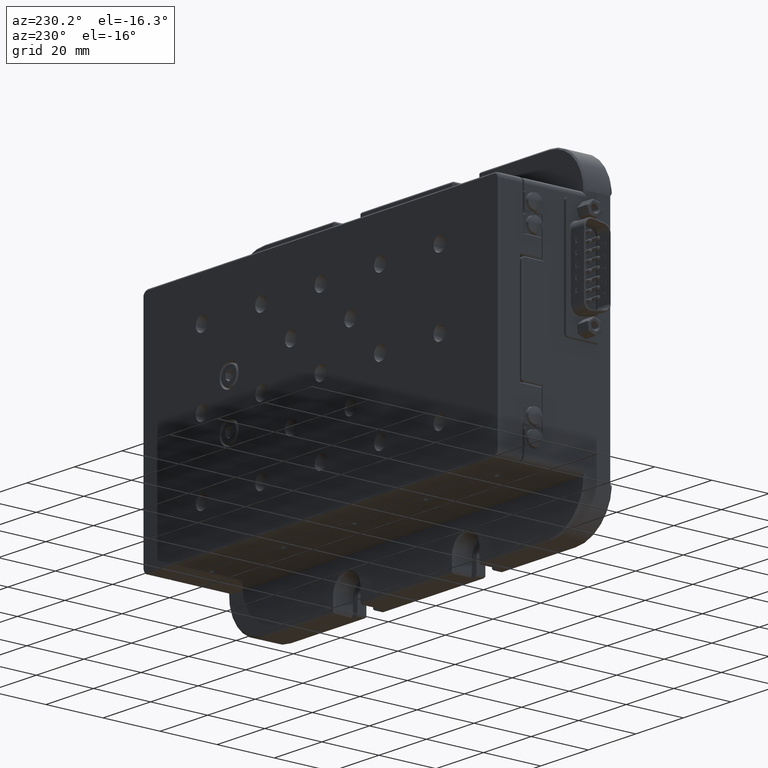
[diagram: clean part render]
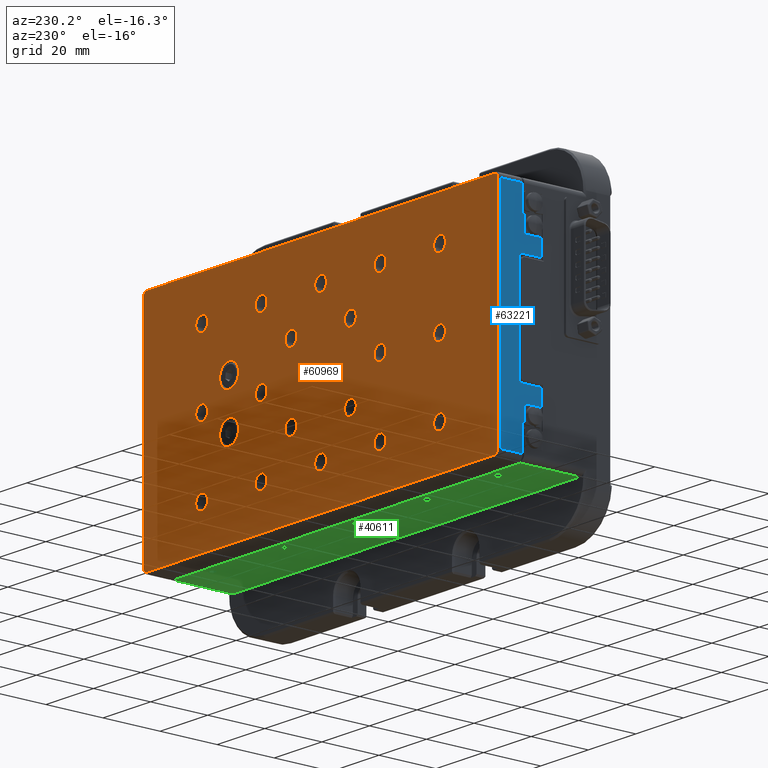
[diagram: same view with three faces highlighted in distinct colors, each labeled with its STEP entity id]
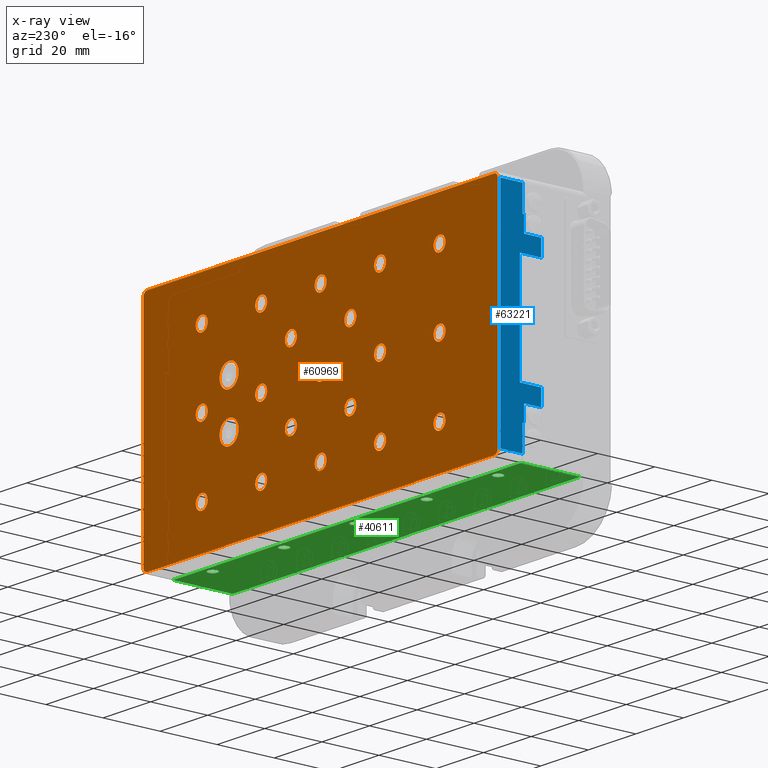
[diagram: x-ray of the same camera — body ghosted, the three highlighted faces saturated]
A machine part, auxiliary view with three faces highlighted in distinct colors.
The next image is the same camera in x-ray (body ghosted, the three faces saturated) — at least one of them is partly hidden behind the body in this view.
Their STEP definitions:

[orange] entity #60969 — the highlighted planar face has unit normal (0, 1, 0).
#39 = CIRCLE ( 'NONE', #39982, 2.500000000000002200 ) ;
#104 = ORIENTED_EDGE ( 'NONE', *, *, #36175, .T. ) ;
#674 = DIRECTION ( 'NONE',  ( 0.0000000000000000000, -1.224646799147358900E-016, 1.000000000000000000 ) ) ;
#843 = EDGE_CURVE ( 'NONE', #47787, #39453, #42745, .T. ) ;
#891 = CARTESIAN_POINT ( 'NONE',  ( 265.4980153580485200, 40.00000000000003600, 49.61789066043693500 ) ) ;
#915 = CARTESIAN_POINT ( 'NONE',  ( 265.4980153580485200, 40.00000000000004300, 10.11789066043693800 ) ) ;
#991 = VERTEX_POINT ( 'NONE', #48229 ) ;
#1100 = DIRECTION ( 'NONE',  ( -1.224646799147352700E-016, -1.000000000000000000, -1.224646799147355400E-016 ) ) ;
#1115 = DIRECTION ( 'NONE',  ( 0.0000000000000000000, -1.224646799147358900E-016, 1.000000000000000000 ) ) ;
#1386 = EDGE_CURVE ( 'NONE', #57998, #19868, #44227, .T. ) ;
#1409 = DIRECTION ( 'NONE',  ( -1.224646799147352700E-016, -1.000000000000000000, -1.224646799147355400E-016 ) ) ;
#1594 = CIRCLE ( 'NONE', #21606, 2.500000000000002200 ) ;
#1620 = DIRECTION ( 'NONE',  ( 0.0000000000000000000, 0.0000000000000000000, 1.000000000000000000 ) ) ;
#1653 = VERTEX_POINT ( 'NONE', #51838 ) ;
#1736 = FACE_BOUND ( 'NONE', #13314, .T. ) ;
#1748 = VERTEX_POINT ( 'NONE', #51603 ) ;
#1798 = VERTEX_POINT ( 'NONE', #22691 ) ;
#1827 = CIRCLE ( 'NONE', #23085, 2.500000000000002200 ) ;
#1901 = ORIENTED_EDGE ( 'NONE', *, *, #21591, .T. ) ;
#1949 = CARTESIAN_POINT ( 'NONE',  ( 195.4980153580484900, 40.00000000000005000, 24.61789066043695600 ) ) ;
#2098 = CARTESIAN_POINT ( 'NONE',  ( 232.9980153580485800, 40.00000000000003600, 59.61789066043693500 ) ) ;
#2149 = LINE ( 'NONE', #48984, #20867 ) ;
#2539 = EDGE_CURVE ( 'NONE', #64460, #30722, #50345, .T. ) ;
#2565 = FACE_BOUND ( 'NONE', #36147, .T. ) ;
#2945 = CARTESIAN_POINT ( 'NONE',  ( 258.9980153580485200, 40.00000000000003600, 57.61789066043693500 ) ) ;
#3011 = CIRCLE ( 'NONE', #52564, 2.500000000000002200 ) ;
#3088 = EDGE_CURVE ( 'NONE', #34633, #4170, #3903, .T. ) ;
#3157 = DIRECTION ( 'NONE',  ( -1.224646799147352700E-016, -1.000000000000000000, -1.224646799147355400E-016 ) ) ;
#3424 = DIRECTION ( 'NONE',  ( -1.224646799147352700E-016, -1.000000000000000000, -1.224646799147355400E-016 ) ) ;
#3488 = DIRECTION ( 'NONE',  ( 0.0000000000000000000, 0.0000000000000000000, 1.000000000000000000 ) ) ;
#3655 = VERTEX_POINT ( 'NONE', #54341 ) ;
#3903 = CIRCLE ( 'NONE', #13506, 2.499999999999998700 ) ;
#3925 = DIRECTION ( 'NONE',  ( -1.224646799147352700E-016, -1.000000000000000000, -1.224646799147355400E-016 ) ) ;
#4136 = FACE_BOUND ( 'NONE', #7845, .T. ) ;
#4170 = VERTEX_POINT ( 'NONE', #57377 ) ;
#4194 = VERTEX_POINT ( 'NONE', #24130 ) ;
#4272 = AXIS2_PLACEMENT_3D ( 'NONE', #7430, #7006, #57002 ) ;
#4325 = ORIENTED_EDGE ( 'NONE', *, *, #35173, .T. ) ;
#4436 = DIRECTION ( 'NONE',  ( 0.0000000000000000000, 0.0000000000000000000, 1.000000000000000000 ) ) ;
#4483 = DIRECTION ( 'NONE',  ( 0.0000000000000000000, 0.0000000000000000000, 1.000000000000000000 ) ) ;
#4522 = DIRECTION ( 'NONE',  ( 0.0000000000000000000, 0.0000000000000000000, 1.000000000000000000 ) ) ;
#4563 = DIRECTION ( 'NONE',  ( -1.224646799147352700E-016, -1.000000000000000000, -1.224646799147355400E-016 ) ) ;
#4825 = CARTESIAN_POINT ( 'NONE',  ( 220.4980153580485200, 40.00000000000004300, 22.11789066043694500 ) ) ;
#5159 = VERTEX_POINT ( 'NONE', #16707 ) ;
#5209 = CARTESIAN_POINT ( 'NONE',  ( 232.9980153580485500, 40.00000000000004300, 37.11789066043694200 ) ) ;
#5309 = CIRCLE ( 'NONE', #13731, 1.500000000016279900 ) ;
#5366 = CARTESIAN_POINT ( 'NONE',  ( 170.4980153580485500, 40.00000000000004300, 74.61789066043694200 ) ) ;
#5558 = ORIENTED_EDGE ( 'NONE', *, *, #46838, .T. ) ;
#5639 = DIRECTION ( 'NONE',  ( -1.224646799147352700E-016, -1.000000000000000000, -1.224646799147355400E-016 ) ) ;
#5689 = VECTOR ( 'NONE', #26427, 1000.000000000000000 ) ;
#5936 = DIRECTION ( 'NONE',  ( -1.224646799147352700E-016, -1.000000000000000000, -1.224646799147355400E-016 ) ) ;
#6059 = VERTEX_POINT ( 'NONE', #25283 ) ;
#6132 = ORIENTED_EDGE ( 'NONE', *, *, #6867, .T. ) ;
#6223 = DIRECTION ( 'NONE',  ( -1.224646799147352700E-016, -1.000000000000000000, -1.224646799147355400E-016 ) ) ;
#6252 = CARTESIAN_POINT ( 'NONE',  ( 232.9980153580485800, 40.00000000000003600, 64.61789066043694200 ) ) ;
#6283 = AXIS2_PLACEMENT_3D ( 'NONE', #34360, #48695, #4522 ) ;
#6376 = DIRECTION ( 'NONE',  ( 0.0000000000000000000, 0.0000000000000000000, 1.000000000000000000 ) ) ;
#6463 = EDGE_CURVE ( 'NONE', #48517, #35381, #36303, .T. ) ;
#6478 = AXIS2_PLACEMENT_3D ( 'NONE', #8980, #48542, #48127 ) ;
#6638 = CIRCLE ( 'NONE', #41195, 2.500000000000002200 ) ;
#6666 = EDGE_CURVE ( 'NONE', #14004, #53799, #49442, .T. ) ;
#6680 = CARTESIAN_POINT ( 'NONE',  ( 245.4980153580485200, 40.00000000000004300, 24.61789066043693800 ) ) ;
#6867 = EDGE_CURVE ( 'NONE', #36573, #991, #54142, .T. ) ;
#7006 = DIRECTION ( 'NONE',  ( -1.224646799147352700E-016, -1.000000000000000000, -1.224646799147355400E-016 ) ) ;
#7069 = VERTEX_POINT ( 'NONE', #33419 ) ;
#7143 = DIRECTION ( 'NONE',  ( 0.0000000000000000000, 0.0000000000000000000, 1.000000000000000000 ) ) ;
#7380 = CIRCLE ( 'NONE', #4272, 2.500000000000002200 ) ;
#7381 = CIRCLE ( 'NONE', #34564, 2.499999999999998700 ) ;
#7430 = CARTESIAN_POINT ( 'NONE',  ( 207.9980153580485200, 40.00000000000004300, 37.11789066043694900 ) ) ;
#7534 = DIRECTION ( 'NONE',  ( -1.224646799147352700E-016, -1.000000000000000000, -1.224646799147355400E-016 ) ) ;
#7701 = DIRECTION ( 'NONE',  ( -1.224646799147352700E-016, -1.000000000000000000, -1.224646799147355400E-016 ) ) ;
#7796 = EDGE_CURVE ( 'NONE', #11080, #30281, #46200, .T. ) ;
#7845 = EDGE_LOOP ( 'NONE', ( #8334, #11670 ) ) ;
#7871 = AXIS2_PLACEMENT_3D ( 'NONE', #5366, #29746, #35629 ) ;
#7978 = DIRECTION ( 'NONE',  ( -1.224646799147352700E-016, -1.000000000000000000, -1.224646799147355400E-016 ) ) ;
#8043 = ORIENTED_EDGE ( 'NONE', *, *, #3088, .T. ) ;
#8268 = EDGE_CURVE ( 'NONE', #58025, #20839, #34494, .T. ) ;
#8280 = DIRECTION ( 'NONE',  ( -1.224646799147352700E-016, -1.000000000000000000, -1.224646799147355400E-016 ) ) ;
#8333 = CARTESIAN_POINT ( 'NONE',  ( 293.4980153580484600, 39.99999999996362000, 11.61789066043693300 ) ) ;
#8334 = ORIENTED_EDGE ( 'NONE', *, *, #7796, .T. ) ;
#8493 = DIRECTION ( 'NONE',  ( 0.0000000000000000000, 0.0000000000000000000, 1.000000000000000000 ) ) ;
#8683 = DIRECTION ( 'NONE',  ( 0.0000000000000000000, 0.0000000000000000000, 1.000000000000000000 ) ) ;
#8748 = CARTESIAN_POINT ( 'NONE',  ( 232.9980153580485500, 40.00000000000004300, 37.11789066043694200 ) ) ;
#8980 = CARTESIAN_POINT ( 'NONE',  ( 170.4980153580485200, 40.00000000000005000, 49.61789066043697000 ) ) ;
#9200 = DIRECTION ( 'NONE',  ( -1.224646799147352700E-016, -1.000000000000000000, -1.224646799147355400E-016 ) ) ;
#9323 = AXIS2_PLACEMENT_3D ( 'NONE', #62585, #3424, #28041 ) ;
#9369 = ORIENTED_EDGE ( 'NONE', *, *, #13450, .T. ) ;
#9410 = DIRECTION ( 'NONE',  ( 0.0000000000000000000, 0.0000000000000000000, 1.000000000000000000 ) ) ;
#9609 = FACE_BOUND ( 'NONE', #44044, .T. ) ;
#9832 = CIRCLE ( 'NONE', #58961, 2.500000000000002200 ) ;
#10127 = ORIENTED_EDGE ( 'NONE', *, *, #21725, .T. ) ;
#10209 = EDGE_LOOP ( 'NONE', ( #104, #34845 ) ) ;
#10340 = ORIENTED_EDGE ( 'NONE', *, *, #1386, .T. ) ;
#10401 = DIRECTION ( 'NONE',  ( -1.224646799147352700E-016, -1.000000000000000000, -1.224646799147355400E-016 ) ) ;
#10431 = DIRECTION ( 'NONE',  ( 0.0000000000000000000, 0.0000000000000000000, 1.000000000000000000 ) ) ;
#10573 = VERTEX_POINT ( 'NONE', #45389 ) ;
#10617 = EDGE_LOOP ( 'NONE', ( #17614, #4325 ) ) ;
#10805 = CIRCLE ( 'NONE', #21830, 2.500000000000002200 ) ;
#10832 = DIRECTION ( 'NONE',  ( -0.0000000000000000000, 1.000000000000000000, -1.734723476003317200E-015 ) ) ;
#10837 = EDGE_LOOP ( 'NONE', ( #54291, #45411 ) ) ;
#11073 = ORIENTED_EDGE ( 'NONE', *, *, #54150, .T. ) ;
#11080 = VERTEX_POINT ( 'NONE', #60895 ) ;
#11161 = FACE_BOUND ( 'NONE', #39288, .T. ) ;
#11200 = ORIENTED_EDGE ( 'NONE', *, *, #37200, .T. ) ;
#11670 = ORIENTED_EDGE ( 'NONE', *, *, #54577, .T. ) ;
#11680 = DIRECTION ( 'NONE',  ( -1.224646799147352700E-016, -1.000000000000000000, -1.224646799147355400E-016 ) ) ;
#11764 = VERTEX_POINT ( 'NONE', #2098 ) ;
#11881 = CARTESIAN_POINT ( 'NONE',  ( 220.4980153580485200, 40.00000000000003600, 74.61789066043694200 ) ) ;
#11908 = FACE_BOUND ( 'NONE', #56264, .T. ) ;
#12110 = CIRCLE ( 'NONE', #52575, 2.500000000000002200 ) ;
#12159 = CARTESIAN_POINT ( 'NONE',  ( 220.4980153580485200, 40.00000000000004300, 47.11789066043694900 ) ) ;
#12480 = CARTESIAN_POINT ( 'NONE',  ( 220.4980153580485200, 40.00000000000004300, 52.11789066043695600 ) ) ;
#12726 = CIRCLE ( 'NONE', #50765, 2.500000000000002200 ) ;
#12859 = ORIENTED_EDGE ( 'NONE', *, *, #15614, .T. ) ;
#13170 = CARTESIAN_POINT ( 'NONE',  ( 270.4980153580485200, 40.00000000000003600, 22.11789066043693100 ) ) ;
#13314 = EDGE_LOOP ( 'NONE', ( #6132, #11200 ) ) ;
#13450 = EDGE_CURVE ( 'NONE', #4170, #34633, #17097, .T. ) ;
#13506 = AXIS2_PLACEMENT_3D ( 'NONE', #63933, #18997, #53785 ) ;
#13731 = AXIS2_PLACEMENT_3D ( 'NONE', #8333, #23761, #48745 ) ;
#13994 = CARTESIAN_POINT ( 'NONE',  ( 258.9980153580485200, 40.00000000000003600, 41.61789066043693500 ) ) ;
#14004 = VERTEX_POINT ( 'NONE', #28238 ) ;
#14186 = CARTESIAN_POINT ( 'NONE',  ( 220.4980153580485200, 40.00000000000004300, 49.61789066043695600 ) ) ;
#14395 = EDGE_CURVE ( 'NONE', #21418, #26440, #38055, .T. ) ;
#14793 = ORIENTED_EDGE ( 'NONE', *, *, #8268, .T. ) ;
#14796 = EDGE_CURVE ( 'NONE', #62017, #47787, #21663, .T. ) ;
#15055 = FACE_BOUND ( 'NONE', #28598, .T. ) ;
#15135 = AXIS2_PLACEMENT_3D ( 'NONE', #21484, #21265, #46892 ) ;
#15170 = ORIENTED_EDGE ( 'NONE', *, *, #54639, .T. ) ;
#15203 = CARTESIAN_POINT ( 'NONE',  ( 293.4980153580485200, 39.99999999996362000, 87.61789066043692700 ) ) ;
#15338 = DIRECTION ( 'NONE',  ( 0.0000000000000000000, 0.0000000000000000000, 1.000000000000000000 ) ) ;
#15614 = EDGE_CURVE ( 'NONE', #34048, #15714, #52679, .T. ) ;
#15714 = VERTEX_POINT ( 'NONE', #21421 ) ;
#15813 = DIRECTION ( 'NONE',  ( 0.0000000000000000000, 0.0000000000000000000, 1.000000000000000000 ) ) ;
#15849 = FACE_BOUND ( 'NONE', #10837, .T. ) ;
#16007 = EDGE_CURVE ( 'NONE', #26440, #21418, #25394, .T. ) ;
#16322 = EDGE_LOOP ( 'NONE', ( #45514, #52214 ) ) ;
#16454 = ORIENTED_EDGE ( 'NONE', *, *, #36033, .T. ) ;
#16489 = CIRCLE ( 'NONE', #25973, 2.499999999999988500 ) ;
#16586 = FACE_BOUND ( 'NONE', #16322, .T. ) ;
#16653 = VERTEX_POINT ( 'NONE', #39112 ) ;
#16684 = CARTESIAN_POINT ( 'NONE',  ( 293.4980153580484600, 39.99999999998182400, 10.11789066041872700 ) ) ;
#16707 = CARTESIAN_POINT ( 'NONE',  ( 232.9980153580485500, 40.00000000000004300, 34.61789066043694200 ) ) ;
#16768 = AXIS2_PLACEMENT_3D ( 'NONE', #29706, #59891, #30133 ) ;
#16894 = DIRECTION ( 'NONE',  ( 0.0000000000000000000, 0.0000000000000000000, 1.000000000000000000 ) ) ;
#17097 = CIRCLE ( 'NONE', #17561, 2.499999999999998700 ) ;
#17112 = CARTESIAN_POINT ( 'NONE',  ( 270.4980153580485200, 40.00000000000003600, 24.61789066043693100 ) ) ;
#17235 = DIRECTION ( 'NONE',  ( -1.224646799147352700E-016, -1.000000000000000000, -1.224646799147355400E-016 ) ) ;
#17342 = CARTESIAN_POINT ( 'NONE',  ( 170.4980153580484900, 40.00000000000005000, 27.11789066043697700 ) ) ;
#17561 = AXIS2_PLACEMENT_3D ( 'NONE', #19213, #34205, #39219 ) ;
#17614 = ORIENTED_EDGE ( 'NONE', *, *, #37547, .T. ) ;
#17797 = DIRECTION ( 'NONE',  ( 0.0000000000000000000, 0.0000000000000000000, 1.000000000000000000 ) ) ;
#17850 = VERTEX_POINT ( 'NONE', #28212 ) ;
#17949 = CIRCLE ( 'NONE', #60433, 2.499999999999998700 ) ;
#18258 = VERTEX_POINT ( 'NONE', #37573 ) ;
#18276 = CARTESIAN_POINT ( 'NONE',  ( 220.4980153580485200, 40.00000000000003600, 77.11789066043695600 ) ) ;
#18440 = ORIENTED_EDGE ( 'NONE', *, *, #60833, .T. ) ;
#18710 = DIRECTION ( 'NONE',  ( -1.224646799147352700E-016, -1.000000000000000000, -1.224646799147355400E-016 ) ) ;
#18713 = VERTEX_POINT ( 'NONE', #47645 ) ;
#18767 = AXIS2_PLACEMENT_3D ( 'NONE', #34259, #34470, #29469 ) ;
#18772 = CIRCLE ( 'NONE', #6478, 2.500000000000002200 ) ;
#18997 = DIRECTION ( 'NONE',  ( -1.224646799147352700E-016, -1.000000000000000000, -1.224646799147355400E-016 ) ) ;
#19213 = CARTESIAN_POINT ( 'NONE',  ( 220.4980153580485200, 40.00000000000004300, 24.61789066043694500 ) ) ;
#19313 = CARTESIAN_POINT ( 'NONE',  ( 258.9980153580485200, 40.00000000000003600, 53.61789066043692700 ) ) ;
#19324 = CIRCLE ( 'NONE', #29266, 2.500000000000002200 ) ;
#19476 = VERTEX_POINT ( 'NONE', #49734 ) ;
#19527 = VERTEX_POINT ( 'NONE', #42507 ) ;
#19868 = VERTEX_POINT ( 'NONE', #58353 ) ;
#19903 = DIRECTION ( 'NONE',  ( 0.0000000000000000000, -4.625929269046148000E-015, -1.000000000000000000 ) ) ;
#20020 = CARTESIAN_POINT ( 'NONE',  ( 270.4980153580485800, 40.00000000000002800, 74.61789066043689900 ) ) ;
#20087 = VECTOR ( 'NONE', #674, 1000.000000000000000 ) ;
#20221 = CIRCLE ( 'NONE', #29607, 4.000000000000003600 ) ;
#20736 = ORIENTED_EDGE ( 'NONE', *, *, #28373, .T. ) ;
#20744 = CARTESIAN_POINT ( 'NONE',  ( 220.4980153580485200, 40.00000000000003600, 74.61789066043694200 ) ) ;
#20839 = VERTEX_POINT ( 'NONE', #34116 ) ;
#20867 = VECTOR ( 'NONE', #64360, 1000.000000000000000 ) ;
#21014 = CIRCLE ( 'NONE', #48650, 2.500000000000002200 ) ;
#21106 = CARTESIAN_POINT ( 'NONE',  ( 147.4980153580485200, 39.99999999996361300, 87.61789066043698400 ) ) ;
#21265 = DIRECTION ( 'NONE',  ( -1.224646799147352700E-016, -1.000000000000000000, -1.224646799147355400E-016 ) ) ;
#21418 = VERTEX_POINT ( 'NONE', #39062 ) ;
#21421 = CARTESIAN_POINT ( 'NONE',  ( 147.4980153580485200, 39.99999999996362000, 10.11789066045469500 ) ) ;
#21484 = CARTESIAN_POINT ( 'NONE',  ( 270.4980153580485200, 40.00000000000003600, 24.61789066043693100 ) ) ;
#21591 = EDGE_CURVE ( 'NONE', #4194, #1748, #39485, .T. ) ;
#21592 = CIRCLE ( 'NONE', #45809, 2.500000000000002200 ) ;
#21606 = AXIS2_PLACEMENT_3D ( 'NONE', #20020, #54788, #25022 ) ;
#21663 = LINE ( 'NONE', #30531, #20087 ) ;
#21725 = EDGE_CURVE ( 'NONE', #24886, #24019, #19324, .T. ) ;
#21830 = AXIS2_PLACEMENT_3D ( 'NONE', #28907, #8280, #8493 ) ;
#22229 = CARTESIAN_POINT ( 'NONE',  ( 195.4980153580484900, 40.00000000000005000, 22.11789066043695900 ) ) ;
#22244 = DIRECTION ( 'NONE',  ( 0.0000000000000000000, 0.0000000000000000000, 1.000000000000000000 ) ) ;
#22387 = CARTESIAN_POINT ( 'NONE',  ( 207.9980153580485200, 40.00000000000004300, 59.61789066043694900 ) ) ;
#22691 = CARTESIAN_POINT ( 'NONE',  ( 245.4980153580485500, 40.00000000000003600, 77.11789066043695600 ) ) ;
#22842 = FACE_BOUND ( 'NONE', #23727, .T. ) ;
#23007 = DIRECTION ( 'NONE',  ( 0.0000000000000000000, 0.0000000000000000000, 1.000000000000000000 ) ) ;
#23085 = AXIS2_PLACEMENT_3D ( 'NONE', #56274, #46294, #7143 ) ;
#23087 = EDGE_LOOP ( 'NONE', ( #50965, #44900 ) ) ;
#23727 = EDGE_LOOP ( 'NONE', ( #9369, #8043 ) ) ;
#23761 = DIRECTION ( 'NONE',  ( 0.0000000000000000000, 1.000000000000000000, 0.0000000000000000000 ) ) ;
#23887 = VERTEX_POINT ( 'NONE', #46287 ) ;
#24019 = VERTEX_POINT ( 'NONE', #43692 ) ;
#24130 = CARTESIAN_POINT ( 'NONE',  ( 270.4980153580485200, 40.00000000000003600, 47.11789066043692700 ) ) ;
#24170 = CARTESIAN_POINT ( 'NONE',  ( 258.9980153580485200, 40.00000000000003600, 45.61789066043693500 ) ) ;
#24398 = FACE_BOUND ( 'NONE', #54817, .T. ) ;
#24675 = AXIS2_PLACEMENT_3D ( 'NONE', #31918, #7978, #17797 ) ;
#24677 = DIRECTION ( 'NONE',  ( -1.224646799147352700E-016, -1.000000000000000000, -1.224646799147355400E-016 ) ) ;
#24688 = AXIS2_PLACEMENT_3D ( 'NONE', #52328, #7534, #32756 ) ;
#24700 = AXIS2_PLACEMENT_3D ( 'NONE', #45334, #24677, #34686 ) ;
#24702 = CIRCLE ( 'NONE', #34587, 1.500000000073067800 ) ;
#24709 = EDGE_CURVE ( 'NONE', #5159, #19476, #9832, .T. ) ;
#24886 = VERTEX_POINT ( 'NONE', #18276 ) ;
#25022 = DIRECTION ( 'NONE',  ( 0.0000000000000000000, 0.0000000000000000000, 1.000000000000000000 ) ) ;
#25088 = EDGE_LOOP ( 'NONE', ( #27661, #60653 ) ) ;
#25122 = DIRECTION ( 'NONE',  ( -1.224646799147352700E-016, -1.000000000000000000, -1.224646799147355400E-016 ) ) ;
#25283 = CARTESIAN_POINT ( 'NONE',  ( 245.4980153580485200, 40.00000000000003600, 47.11789066043694200 ) ) ;
#25288 = EDGE_CURVE ( 'NONE', #30722, #64460, #41822, .T. ) ;
#25394 = CIRCLE ( 'NONE', #33069, 2.500000000000002200 ) ;
#25436 = AXIS2_PLACEMENT_3D ( 'NONE', #6680, #41518, #35865 ) ;
#25674 = DIRECTION ( 'NONE',  ( -0.0000000000000000000, 1.000000000000000000, -3.469446952006730600E-015 ) ) ;
#25905 = EDGE_CURVE ( 'NONE', #11764, #39251, #6638, .T. ) ;
#25973 = AXIS2_PLACEMENT_3D ( 'NONE', #46567, #36375, #52011 ) ;
#26419 = AXIS2_PLACEMENT_3D ( 'NONE', #2945, #37189, #23007 ) ;
#26427 = DIRECTION ( 'NONE',  ( -0.0000000000000000000, 1.224646799147358900E-016, -1.000000000000000000 ) ) ;
#26440 = VERTEX_POINT ( 'NONE', #56730 ) ;
#26789 = ORIENTED_EDGE ( 'NONE', *, *, #14395, .T. ) ;
#27126 = CARTESIAN_POINT ( 'NONE',  ( 245.4980153580485200, 40.00000000000004300, 27.11789066043693800 ) ) ;
#27326 = CARTESIAN_POINT ( 'NONE',  ( 170.4980153580485500, 40.00000000000004300, 77.11789066043695600 ) ) ;
#27657 = ORIENTED_EDGE ( 'NONE', *, *, #28191, .T. ) ;
#27661 = ORIENTED_EDGE ( 'NONE', *, *, #45398, .T. ) ;
#27827 = DIRECTION ( 'NONE',  ( -1.224646799147352700E-016, -1.000000000000000000, -1.224646799147355400E-016 ) ) ;
#27974 = AXIS2_PLACEMENT_3D ( 'NONE', #36481, #6223, #15813 ) ;
#28041 = DIRECTION ( 'NONE',  ( 0.0000000000000000000, 0.0000000000000000000, 1.000000000000000000 ) ) ;
#28064 = AXIS2_PLACEMENT_3D ( 'NONE', #61003, #1409, #1620 ) ;
#28191 = EDGE_CURVE ( 'NONE', #19527, #60660, #37543, .T. ) ;
#28212 = CARTESIAN_POINT ( 'NONE',  ( 170.4980153580484900, 40.00000000000005000, 22.11789066043698100 ) ) ;
#28238 = CARTESIAN_POINT ( 'NONE',  ( 245.4980153580485200, 40.00000000000004300, 22.11789066043693800 ) ) ;
#28237 = FACE_BOUND ( 'NONE', #30898, .T. ) ;
#28373 = EDGE_CURVE ( 'NONE', #24019, #24886, #39, .T. ) ;
#28598 = EDGE_LOOP ( 'NONE', ( #39475, #18440 ) ) ;
#28637 = ORIENTED_EDGE ( 'NONE', *, *, #46729, .T. ) ;
#28735 = DIRECTION ( 'NONE',  ( -1.224646799147352700E-016, -1.000000000000000000, -1.224646799147355400E-016 ) ) ;
#28907 = CARTESIAN_POINT ( 'NONE',  ( 232.9980153580485800, 40.00000000000003600, 62.11789066043693500 ) ) ;
#29098 = ORIENTED_EDGE ( 'NONE', *, *, #41713, .T. ) ;
#29266 = AXIS2_PLACEMENT_3D ( 'NONE', #20744, #1100, #6376 ) ;
#29407 = CARTESIAN_POINT ( 'NONE',  ( 258.9980153580485200, 40.00000000000003600, 57.61789066043693500 ) ) ;
#29469 = DIRECTION ( 'NONE',  ( 0.0000000000000000000, 0.0000000000000000000, 1.000000000000000000 ) ) ;
#29607 = AXIS2_PLACEMENT_3D ( 'NONE', #13994, #3925, #3488 ) ;
#29706 = CARTESIAN_POINT ( 'NONE',  ( 207.9980153580485200, 40.00000000000004300, 62.11789066043694900 ) ) ;
#29746 = DIRECTION ( 'NONE',  ( -1.224646799147352700E-016, -1.000000000000000000, -1.224646799147355400E-016 ) ) ;
#30058 = VERTEX_POINT ( 'NONE', #22387 ) ;
#30065 = VECTOR ( 'NONE', #36006, 1000.000000000000000 ) ;
#30133 = DIRECTION ( 'NONE',  ( 0.0000000000000000000, 0.0000000000000000000, 1.000000000000000000 ) ) ;
#30181 = CIRCLE ( 'NONE', #58256, 1.499999999981266300 ) ;
#30281 = VERTEX_POINT ( 'NONE', #19313 ) ;
#30322 = DIRECTION ( 'NONE',  ( 1.504632769045892200E-030, 1.000000000000000000, -3.469446951945971700E-015 ) ) ;
#30419 = DIRECTION ( 'NONE',  ( 0.0000000000000000000, 0.0000000000000000000, 1.000000000000000000 ) ) ;
#30531 = CARTESIAN_POINT ( 'NONE',  ( 145.9980153580485200, 40.00000000000005000, 49.61789066043693500 ) ) ;
#30722 = VERTEX_POINT ( 'NONE', #13170 ) ;
#30730 = ORIENTED_EDGE ( 'NONE', *, *, #56778, .T. ) ;
#30898 = EDGE_LOOP ( 'NONE', ( #30730, #29098 ) ) ;
#31558 = VERTEX_POINT ( 'NONE', #36307 ) ;
#31668 = CARTESIAN_POINT ( 'NONE',  ( 145.9980153580662500, 39.99999999996362000, 11.61789066043698200 ) ) ;
#31842 = CARTESIAN_POINT ( 'NONE',  ( 245.4980153580485200, 40.00000000000003600, 49.61789066043694900 ) ) ;
#31918 = CARTESIAN_POINT ( 'NONE',  ( 258.9980153580485200, 40.00000000000003600, 41.61789066043693500 ) ) ;
#32018 = CIRCLE ( 'NONE', #54728, 2.500000000000002200 ) ;
#32756 = DIRECTION ( 'NONE',  ( 0.0000000000000000000, 0.0000000000000000000, 1.000000000000000000 ) ) ;
#32778 = CIRCLE ( 'NONE', #28064, 2.500000000000002200 ) ;
#32941 = FACE_BOUND ( 'NONE', #10617, .T. ) ;
#33069 = AXIS2_PLACEMENT_3D ( 'NONE', #45944, #45735, #55709 ) ;
#33419 = CARTESIAN_POINT ( 'NONE',  ( 195.4980153580484900, 40.00000000000004300, 77.11789066043695600 ) ) ;
#33543 = DIRECTION ( 'NONE',  ( -1.224646799147352700E-016, -1.000000000000000000, -1.224646799147355400E-016 ) ) ;
#33890 = ORIENTED_EDGE ( 'NONE', *, *, #43541, .T. ) ;
#34048 = VERTEX_POINT ( 'NONE', #16684 ) ;
#34093 = CIRCLE ( 'NONE', #50384, 4.000000000000003600 ) ;
#34116 = CARTESIAN_POINT ( 'NONE',  ( 294.9980153580592100, 39.99999999999204200, 11.61789066043696500 ) ) ;
#34192 = EDGE_CURVE ( 'NONE', #1653, #10573, #57799, .T. ) ;
#34205 = DIRECTION ( 'NONE',  ( -1.224646799147352700E-016, -1.000000000000000000, -1.224646799147355400E-016 ) ) ;
#34232 = ORIENTED_EDGE ( 'NONE', *, *, #54517, .T. ) ;
#34259 = CARTESIAN_POINT ( 'NONE',  ( 270.4980153580485200, 40.00000000000003600, 49.61789066043693500 ) ) ;
#34323 = CARTESIAN_POINT ( 'NONE',  ( 170.4980153580485200, 40.00000000000005000, 49.61789066043697000 ) ) ;
#34360 = CARTESIAN_POINT ( 'NONE',  ( 220.4980153580485200, 40.00000000000004300, 49.61789066043695600 ) ) ;
#34470 = DIRECTION ( 'NONE',  ( -1.224646799147352700E-016, -1.000000000000000000, -1.224646799147355400E-016 ) ) ;
#34494 = LINE ( 'NONE', #56184, #5689 ) ;
#34518 = FACE_BOUND ( 'NONE', #46224, .T. ) ;
#34564 = AXIS2_PLACEMENT_3D ( 'NONE', #38506, #27827, #8683 ) ;
#34587 = AXIS2_PLACEMENT_3D ( 'NONE', #44506, #30322, #19903 ) ;
#34616 = DIRECTION ( 'NONE',  ( 0.0000000000000000000, 0.0000000000000000000, 1.000000000000000000 ) ) ;
#34633 = VERTEX_POINT ( 'NONE', #4825 ) ;
#34686 = DIRECTION ( 'NONE',  ( 0.0000000000000000000, 0.0000000000000000000, 1.000000000000000000 ) ) ;
#34845 = ORIENTED_EDGE ( 'NONE', *, *, #46320, .T. ) ;
#34858 = CARTESIAN_POINT ( 'NONE',  ( 170.4980153580485200, 40.00000000000005000, 47.11789066043696300 ) ) ;
#35173 = EDGE_CURVE ( 'NONE', #31558, #23887, #1594, .T. ) ;
#35381 = VERTEX_POINT ( 'NONE', #12159 ) ;
#35629 = DIRECTION ( 'NONE',  ( 0.0000000000000000000, 0.0000000000000000000, 1.000000000000000000 ) ) ;
#35865 = DIRECTION ( 'NONE',  ( 0.0000000000000000000, 0.0000000000000000000, 1.000000000000000000 ) ) ;
#35897 = ORIENTED_EDGE ( 'NONE', *, *, #34192, .T. ) ;
#36006 = DIRECTION ( 'NONE',  ( -1.000000000000000000, 1.224646799147352700E-016, 1.499759782661863900E-032 ) ) ;
#36033 = EDGE_CURVE ( 'NONE', #1748, #4194, #49037, .T. ) ;
#36147 = EDGE_LOOP ( 'NONE', ( #10127, #20736 ) ) ;
#36175 = EDGE_CURVE ( 'NONE', #7069, #37101, #43648, .T. ) ;
#36303 = CIRCLE ( 'NONE', #6283, 2.500000000000002200 ) ;
#36307 = CARTESIAN_POINT ( 'NONE',  ( 270.4980153580485800, 40.00000000000002800, 72.11789066043689900 ) ) ;
#36375 = DIRECTION ( 'NONE',  ( -1.224646799147352700E-016, -1.000000000000000000, -1.224646799147355400E-016 ) ) ;
#36481 = CARTESIAN_POINT ( 'NONE',  ( 195.4980153580484900, 40.00000000000005000, 24.61789066043695600 ) ) ;
#36573 = VERTEX_POINT ( 'NONE', #24170 ) ;
#37101 = VERTEX_POINT ( 'NONE', #39948 ) ;
#37189 = DIRECTION ( 'NONE',  ( -1.224646799147352700E-016, -1.000000000000000000, -1.224646799147355400E-016 ) ) ;
#37200 = EDGE_CURVE ( 'NONE', #991, #36573, #20221, .T. ) ;
#37543 = CIRCLE ( 'NONE', #7871, 2.500000000000002200 ) ;
#37547 = EDGE_CURVE ( 'NONE', #23887, #31558, #3011, .T. ) ;
#37573 = CARTESIAN_POINT ( 'NONE',  ( 245.4980153580485500, 40.00000000000003600, 72.11789066043694200 ) ) ;
#37679 = FACE_BOUND ( 'NONE', #10209, .T. ) ;
#37894 = ORIENTED_EDGE ( 'NONE', *, *, #50823, .T. ) ;
#38055 = CIRCLE ( 'NONE', #24688, 2.500000000000002200 ) ;
#38311 = CIRCLE ( 'NONE', #9323, 2.500000000000002200 ) ;
#38506 = CARTESIAN_POINT ( 'NONE',  ( 170.4980153580484900, 40.00000000000005000, 24.61789066043698100 ) ) ;
#38872 = AXIS2_PLACEMENT_3D ( 'NONE', #34323, #64468, #4483 ) ;
#39011 = CARTESIAN_POINT ( 'NONE',  ( 207.9980153580485200, 40.00000000000004300, 37.11789066043694900 ) ) ;
#39044 = EDGE_LOOP ( 'NONE', ( #33890, #55535 ) ) ;
#39062 = CARTESIAN_POINT ( 'NONE',  ( 195.4980153580484900, 40.00000000000004300, 52.11789066043696300 ) ) ;
#39112 = CARTESIAN_POINT ( 'NONE',  ( 207.9980153580485200, 40.00000000000004300, 64.61789066043695600 ) ) ;
#39206 = FACE_BOUND ( 'NONE', #39044, .T. ) ;
#39219 = DIRECTION ( 'NONE',  ( 0.0000000000000000000, 0.0000000000000000000, 1.000000000000000000 ) ) ;
#39251 = VERTEX_POINT ( 'NONE', #6252 ) ;
#39288 = EDGE_LOOP ( 'NONE', ( #26789, #56799 ) ) ;
#39439 = AXIS2_PLACEMENT_3D ( 'NONE', #1949, #17235, #22244 ) ;
#39453 = VERTEX_POINT ( 'NONE', #44472 ) ;
#39475 = ORIENTED_EDGE ( 'NONE', *, *, #46378, .T. ) ;
#39485 = CIRCLE ( 'NONE', #24700, 2.500000000000002200 ) ;
#39948 = CARTESIAN_POINT ( 'NONE',  ( 195.4980153580484900, 40.00000000000004300, 72.11789066043697000 ) ) ;
#39982 = AXIS2_PLACEMENT_3D ( 'NONE', #11881, #46673, #16894 ) ;
#40765 = AXIS2_PLACEMENT_3D ( 'NONE', #39011, #9200, #9410 ) ;
#41195 = AXIS2_PLACEMENT_3D ( 'NONE', #52903, #33543, #48099 ) ;
#41247 = EDGE_CURVE ( 'NONE', #19868, #57998, #42901, .T. ) ;
#41355 = ORIENTED_EDGE ( 'NONE', *, *, #843, .T. ) ;
#41518 = DIRECTION ( 'NONE',  ( -1.224646799147352700E-016, -1.000000000000000000, -1.224646799147355400E-016 ) ) ;
#41601 = CARTESIAN_POINT ( 'NONE',  ( 145.9980153580946800, 39.99999999996361300, 87.61789066043698400 ) ) ;
#41713 = EDGE_CURVE ( 'NONE', #6059, #59606, #21014, .T. ) ;
#41822 = CIRCLE ( 'NONE', #56097, 2.499999999999998700 ) ;
#41827 = CARTESIAN_POINT ( 'NONE',  ( 294.9980153580667100, 39.99999999998181700, 87.61789066043692700 ) ) ;
#42507 = CARTESIAN_POINT ( 'NONE',  ( 170.4980153580485500, 40.00000000000004300, 72.11789066043694200 ) ) ;
#42539 = DIRECTION ( 'NONE',  ( 0.0000000000000000000, 0.0000000000000000000, 1.000000000000000000 ) ) ;
#42643 = EDGE_CURVE ( 'NONE', #3655, #58025, #30181, .T. ) ;
#42745 = CIRCLE ( 'NONE', #48351, 1.499999999981210800 ) ;
#42777 = ORIENTED_EDGE ( 'NONE', *, *, #56398, .T. ) ;
#42855 = ORIENTED_EDGE ( 'NONE', *, *, #63497, .T. ) ;
#42901 = CIRCLE ( 'NONE', #39439, 2.499999999999995100 ) ;
#42937 = VERTEX_POINT ( 'NONE', #17342 ) ;
#43048 = CARTESIAN_POINT ( 'NONE',  ( 170.4980153580484900, 40.00000000000005000, 24.61789066043698100 ) ) ;
#43109 = EDGE_CURVE ( 'NONE', #15714, #62017, #24702, .T. ) ;
#43541 = EDGE_CURVE ( 'NONE', #19476, #5159, #21592, .T. ) ;
#43648 = CIRCLE ( 'NONE', #53327, 2.499999999999988500 ) ;
#43692 = CARTESIAN_POINT ( 'NONE',  ( 220.4980153580485200, 40.00000000000003600, 72.11789066043694200 ) ) ;
#43732 = CARTESIAN_POINT ( 'NONE',  ( 245.4980153580485200, 40.00000000000003600, 52.11789066043694900 ) ) ;
#44044 = EDGE_LOOP ( 'NONE', ( #28637, #42855 ) ) ;
#44227 = CIRCLE ( 'NONE', #27974, 2.499999999999995100 ) ;
#44230 = DIRECTION ( 'NONE',  ( -1.224646799147352700E-016, -1.000000000000000000, -1.224646799147355400E-016 ) ) ;
#44472 = CARTESIAN_POINT ( 'NONE',  ( 147.4980153580485200, 39.99999999998182400, 89.11789066045520300 ) ) ;
#44506 = CARTESIAN_POINT ( 'NONE',  ( 147.4980153580485200, 39.99999999996362000, 11.61789066043698200 ) ) ;
#44693 = EDGE_LOOP ( 'NONE', ( #49694, #10340 ) ) ;
#44803 = CARTESIAN_POINT ( 'NONE',  ( 207.9980153580485200, 40.00000000000004300, 62.11789066043694900 ) ) ;
#44897 = EDGE_CURVE ( 'NONE', #35381, #48517, #12110, .T. ) ;
#44900 = ORIENTED_EDGE ( 'NONE', *, *, #25288, .T. ) ;
#45148 = DIRECTION ( 'NONE',  ( -1.224646799147352700E-016, -1.000000000000000000, -1.224646799147355400E-016 ) ) ;
#45228 = ORIENTED_EDGE ( 'NONE', *, *, #43109, .T. ) ;
#45334 = CARTESIAN_POINT ( 'NONE',  ( 270.4980153580485200, 40.00000000000003600, 49.61789066043693500 ) ) ;
#45389 = CARTESIAN_POINT ( 'NONE',  ( 207.9980153580485200, 40.00000000000004300, 34.61789066043694900 ) ) ;
#45398 = EDGE_CURVE ( 'NONE', #18713, #52604, #64153, .T. ) ;
#45411 = ORIENTED_EDGE ( 'NONE', *, *, #44897, .T. ) ;
#45514 = ORIENTED_EDGE ( 'NONE', *, *, #64422, .T. ) ;
#45648 = EDGE_LOOP ( 'NONE', ( #11073, #56940 ) ) ;
#45735 = DIRECTION ( 'NONE',  ( -1.224646799147352700E-016, -1.000000000000000000, -1.224646799147355400E-016 ) ) ;
#45809 = AXIS2_PLACEMENT_3D ( 'NONE', #8748, #28735, #64128 ) ;
#45944 = CARTESIAN_POINT ( 'NONE',  ( 195.4980153580484900, 40.00000000000004300, 49.61789066043696300 ) ) ;
#46200 = CIRCLE ( 'NONE', #26419, 4.000000000000003600 ) ;
#46224 = EDGE_LOOP ( 'NONE', ( #35897, #42777 ) ) ;
#46287 = CARTESIAN_POINT ( 'NONE',  ( 270.4980153580485800, 40.00000000000002800, 77.11789066043691300 ) ) ;
#46294 = DIRECTION ( 'NONE',  ( -1.224646799147352700E-016, -1.000000000000000000, -1.224646799147355400E-016 ) ) ;
#46320 = EDGE_CURVE ( 'NONE', #37101, #7069, #16489, .T. ) ;
#46378 = EDGE_CURVE ( 'NONE', #1798, #18258, #38311, .T. ) ;
#46567 = CARTESIAN_POINT ( 'NONE',  ( 195.4980153580484900, 40.00000000000004300, 74.61789066043695600 ) ) ;
#46673 = DIRECTION ( 'NONE',  ( -1.224646799147352700E-016, -1.000000000000000000, -1.224646799147355400E-016 ) ) ;
#46729 = EDGE_CURVE ( 'NONE', #16653, #30058, #32018, .T. ) ;
#46838 = EDGE_CURVE ( 'NONE', #60660, #19527, #32778, .T. ) ;
#46892 = DIRECTION ( 'NONE',  ( 0.0000000000000000000, 0.0000000000000000000, 1.000000000000000000 ) ) ;
#47645 = CARTESIAN_POINT ( 'NONE',  ( 170.4980153580485200, 40.00000000000005000, 52.11789066043697000 ) ) ;
#47787 = VERTEX_POINT ( 'NONE', #41601 ) ;
#48040 = DIRECTION ( 'NONE',  ( 0.0000000000000000000, 0.0000000000000000000, 1.000000000000000000 ) ) ;
#48099 = DIRECTION ( 'NONE',  ( 0.0000000000000000000, 0.0000000000000000000, 1.000000000000000000 ) ) ;
#48127 = DIRECTION ( 'NONE',  ( 0.0000000000000000000, 0.0000000000000000000, 1.000000000000000000 ) ) ;
#48229 = CARTESIAN_POINT ( 'NONE',  ( 258.9980153580485200, 40.00000000000003600, 37.61789066043692700 ) ) ;
#48351 = AXIS2_PLACEMENT_3D ( 'NONE', #21106, #25674, #55235 ) ;
#48517 = VERTEX_POINT ( 'NONE', #12480 ) ;
#48542 = DIRECTION ( 'NONE',  ( -1.224646799147352700E-016, -1.000000000000000000, -1.224646799147355400E-016 ) ) ;
#48650 = AXIS2_PLACEMENT_3D ( 'NONE', #31842, #7701, #42539 ) ;
#48695 = DIRECTION ( 'NONE',  ( -1.224646799147352700E-016, -1.000000000000000000, -1.224646799147355400E-016 ) ) ;
#48745 = DIRECTION ( 'NONE',  ( 0.0000000000000000000, 0.0000000000000000000, -1.000000000000000000 ) ) ;
#48984 = CARTESIAN_POINT ( 'NONE',  ( 265.4980153580485200, 40.00000000000002800, 89.11789066043698400 ) ) ;
#49037 = CIRCLE ( 'NONE', #18767, 2.500000000000002200 ) ;
#49255 = CARTESIAN_POINT ( 'NONE',  ( 245.4980153580485500, 40.00000000000003600, 74.61789066043694200 ) ) ;
#49442 = CIRCLE ( 'NONE', #25436, 2.499999999999998700 ) ;
#49688 = DIRECTION ( 'NONE',  ( 0.0000000000000000000, 0.0000000000000000000, 1.000000000000000000 ) ) ;
#49694 = ORIENTED_EDGE ( 'NONE', *, *, #41247, .T. ) ;
#49734 = CARTESIAN_POINT ( 'NONE',  ( 232.9980153580485500, 40.00000000000004300, 39.61789066043694200 ) ) ;
#50345 = CIRCLE ( 'NONE', #15135, 2.499999999999998700 ) ;
#50384 = AXIS2_PLACEMENT_3D ( 'NONE', #29407, #44230, #58736 ) ;
#50765 = AXIS2_PLACEMENT_3D ( 'NONE', #49255, #25122, #4436 ) ;
#50823 = EDGE_CURVE ( 'NONE', #17850, #42937, #7381, .T. ) ;
#50839 = FACE_BOUND ( 'NONE', #23087, .T. ) ;
#50965 = ORIENTED_EDGE ( 'NONE', *, *, #2539, .T. ) ;
#50999 = ORIENTED_EDGE ( 'NONE', *, *, #63178, .T. ) ;
#51186 = PLANE ( 'NONE',  #59509 ) ;
#51254 = DIRECTION ( 'NONE',  ( 0.0000000000000000000, 0.0000000000000000000, 1.000000000000000000 ) ) ;
#51603 = CARTESIAN_POINT ( 'NONE',  ( 270.4980153580485200, 40.00000000000003600, 52.11789066043693500 ) ) ;
#51838 = CARTESIAN_POINT ( 'NONE',  ( 207.9980153580485200, 40.00000000000004300, 39.61789066043694900 ) ) ;
#52011 = DIRECTION ( 'NONE',  ( 0.0000000000000000000, 0.0000000000000000000, 1.000000000000000000 ) ) ;
#52214 = ORIENTED_EDGE ( 'NONE', *, *, #25905, .T. ) ;
#52328 = CARTESIAN_POINT ( 'NONE',  ( 195.4980153580484900, 40.00000000000004300, 49.61789066043696300 ) ) ;
#52564 = AXIS2_PLACEMENT_3D ( 'NONE', #58229, #18710, #48040 ) ;
#52575 = AXIS2_PLACEMENT_3D ( 'NONE', #14186, #4563, #34616 ) ;
#52586 = EDGE_LOOP ( 'NONE', ( #12859, #45228, #53423, #41355, #15170, #54196, #14793, #34232 ) ) ;
#52604 = VERTEX_POINT ( 'NONE', #34858 ) ;
#52679 = LINE ( 'NONE', #915, #30065 ) ;
#52903 = CARTESIAN_POINT ( 'NONE',  ( 232.9980153580485800, 40.00000000000003600, 62.11789066043693500 ) ) ;
#53171 = FACE_OUTER_BOUND ( 'NONE', #52586, .T. ) ;
#53290 = CARTESIAN_POINT ( 'NONE',  ( 270.4980153580485200, 40.00000000000003600, 27.11789066043693100 ) ) ;
#53327 = AXIS2_PLACEMENT_3D ( 'NONE', #55727, #5936, #15338 ) ;
#53423 = ORIENTED_EDGE ( 'NONE', *, *, #14796, .T. ) ;
#53785 = DIRECTION ( 'NONE',  ( 0.0000000000000000000, 0.0000000000000000000, 1.000000000000000000 ) ) ;
#53799 = VERTEX_POINT ( 'NONE', #27126 ) ;
#54142 = CIRCLE ( 'NONE', #24675, 4.000000000000003600 ) ;
#54150 = EDGE_CURVE ( 'NONE', #53799, #14004, #59033, .T. ) ;
#54196 = ORIENTED_EDGE ( 'NONE', *, *, #42643, .T. ) ;
#54291 = ORIENTED_EDGE ( 'NONE', *, *, #6463, .T. ) ;
#54341 = CARTESIAN_POINT ( 'NONE',  ( 293.4980153580485200, 39.99999999996362000, 89.11789066041922100 ) ) ;
#54517 = EDGE_CURVE ( 'NONE', #20839, #34048, #5309, .T. ) ;
#54577 = EDGE_CURVE ( 'NONE', #30281, #11080, #34093, .T. ) ;
#54639 = EDGE_CURVE ( 'NONE', #39453, #3655, #2149, .T. ) ;
#54702 = FACE_BOUND ( 'NONE', #25088, .T. ) ;
#54728 = AXIS2_PLACEMENT_3D ( 'NONE', #44803, #10401, #30419 ) ;
#54788 = DIRECTION ( 'NONE',  ( -1.224646799147352700E-016, -1.000000000000000000, -1.224646799147355400E-016 ) ) ;
#54817 = EDGE_LOOP ( 'NONE', ( #5558, #27657 ) ) ;
#54935 = AXIS2_PLACEMENT_3D ( 'NONE', #60283, #45148, #49688 ) ;
#55235 = DIRECTION ( 'NONE',  ( 0.0000000000000000000, -4.625929269329430300E-015, -1.000000000000000000 ) ) ;
#55535 = ORIENTED_EDGE ( 'NONE', *, *, #24709, .T. ) ;
#55709 = DIRECTION ( 'NONE',  ( 0.0000000000000000000, 0.0000000000000000000, 1.000000000000000000 ) ) ;
#55727 = CARTESIAN_POINT ( 'NONE',  ( 195.4980153580484900, 40.00000000000004300, 74.61789066043695600 ) ) ;
#56097 = AXIS2_PLACEMENT_3D ( 'NONE', #17112, #11680, #51254 ) ;
#56184 = CARTESIAN_POINT ( 'NONE',  ( 294.9980153580485200, 40.00000000000002800, 49.61789066043693500 ) ) ;
#56264 = EDGE_LOOP ( 'NONE', ( #50999, #37894 ) ) ;
#56274 = CARTESIAN_POINT ( 'NONE',  ( 245.4980153580485200, 40.00000000000003600, 49.61789066043694900 ) ) ;
#56398 = EDGE_CURVE ( 'NONE', #10573, #1653, #7380, .T. ) ;
#56730 = CARTESIAN_POINT ( 'NONE',  ( 195.4980153580484900, 40.00000000000004300, 47.11789066043695600 ) ) ;
#56778 = EDGE_CURVE ( 'NONE', #59606, #6059, #1827, .T. ) ;
#56799 = ORIENTED_EDGE ( 'NONE', *, *, #16007, .T. ) ;
#56940 = ORIENTED_EDGE ( 'NONE', *, *, #6666, .T. ) ;
#57002 = DIRECTION ( 'NONE',  ( 0.0000000000000000000, 0.0000000000000000000, 1.000000000000000000 ) ) ;
#57011 = EDGE_LOOP ( 'NONE', ( #16454, #1901 ) ) ;
#57070 = FACE_BOUND ( 'NONE', #44693, .T. ) ;
#57377 = CARTESIAN_POINT ( 'NONE',  ( 220.4980153580485200, 40.00000000000004300, 27.11789066043694200 ) ) ;
#57799 = CIRCLE ( 'NONE', #40765, 2.500000000000002200 ) ;
#57998 = VERTEX_POINT ( 'NONE', #22229 ) ;
#58025 = VERTEX_POINT ( 'NONE', #41827 ) ;
#58229 = CARTESIAN_POINT ( 'NONE',  ( 270.4980153580485800, 40.00000000000002800, 74.61789066043689900 ) ) ;
#58256 = AXIS2_PLACEMENT_3D ( 'NONE', #15203, #10832, #60141 ) ;
#58353 = CARTESIAN_POINT ( 'NONE',  ( 195.4980153580484900, 40.00000000000005000, 27.11789066043694900 ) ) ;
#58736 = DIRECTION ( 'NONE',  ( 0.0000000000000000000, 0.0000000000000000000, 1.000000000000000000 ) ) ;
#58961 = AXIS2_PLACEMENT_3D ( 'NONE', #5209, #5639, #10431 ) ;
#59001 = EDGE_CURVE ( 'NONE', #52604, #18713, #18772, .T. ) ;
#59033 = CIRCLE ( 'NONE', #54935, 2.499999999999998700 ) ;
#59142 = CIRCLE ( 'NONE', #16768, 2.500000000000002200 ) ;
#59509 = AXIS2_PLACEMENT_3D ( 'NONE', #891, #60279, #1115 ) ;
#59606 = VERTEX_POINT ( 'NONE', #43732 ) ;
#59891 = DIRECTION ( 'NONE',  ( -1.224646799147352700E-016, -1.000000000000000000, -1.224646799147355400E-016 ) ) ;
#60141 = DIRECTION ( 'NONE',  ( 0.0000000000000000000, 0.0000000000000000000, -1.000000000000000000 ) ) ;
#60279 = DIRECTION ( 'NONE',  ( 1.224646799147352700E-016, 1.000000000000000000, 1.224646799147358900E-016 ) ) ;
#60283 = CARTESIAN_POINT ( 'NONE',  ( 245.4980153580485200, 40.00000000000004300, 24.61789066043693800 ) ) ;
#60433 = AXIS2_PLACEMENT_3D ( 'NONE', #43048, #3157, #62520 ) ;
#60653 = ORIENTED_EDGE ( 'NONE', *, *, #59001, .T. ) ;
#60660 = VERTEX_POINT ( 'NONE', #27326 ) ;
#60833 = EDGE_CURVE ( 'NONE', #18258, #1798, #12726, .T. ) ;
#60895 = CARTESIAN_POINT ( 'NONE',  ( 258.9980153580485200, 40.00000000000003600, 61.61789066043693500 ) ) ;
#60969 = ADVANCED_FACE ( 'NONE', ( #15849, #9609, #16586, #11161, #54702, #11908, #50839, #63206, #28237, #64018, #22842, #39206, #34518, #2565, #15055, #57070, #37679, #24398, #32941, #4136, #1736, #53171 ), #51186, .T. ) ;
#61003 = CARTESIAN_POINT ( 'NONE',  ( 170.4980153580485500, 40.00000000000004300, 74.61789066043694200 ) ) ;
#62017 = VERTEX_POINT ( 'NONE', #31668 ) ;
#62520 = DIRECTION ( 'NONE',  ( 0.0000000000000000000, 0.0000000000000000000, 1.000000000000000000 ) ) ;
#62585 = CARTESIAN_POINT ( 'NONE',  ( 245.4980153580485500, 40.00000000000003600, 74.61789066043694200 ) ) ;
#63178 = EDGE_CURVE ( 'NONE', #42937, #17850, #17949, .T. ) ;
#63206 = FACE_BOUND ( 'NONE', #57011, .T. ) ;
#63497 = EDGE_CURVE ( 'NONE', #30058, #16653, #59142, .T. ) ;
#63933 = CARTESIAN_POINT ( 'NONE',  ( 220.4980153580485200, 40.00000000000004300, 24.61789066043694500 ) ) ;
#64018 = FACE_BOUND ( 'NONE', #45648, .T. ) ;
#64128 = DIRECTION ( 'NONE',  ( 0.0000000000000000000, 0.0000000000000000000, 1.000000000000000000 ) ) ;
#64153 = CIRCLE ( 'NONE', #38872, 2.500000000000002200 ) ;
#64360 = DIRECTION ( 'NONE',  ( 1.000000000000000000, -1.224646799147352700E-016, -1.499759782661863900E-032 ) ) ;
#64422 = EDGE_CURVE ( 'NONE', #39251, #11764, #10805, .T. ) ;
#64460 = VERTEX_POINT ( 'NONE', #53290 ) ;
#64468 = DIRECTION ( 'NONE',  ( -1.224646799147352700E-016, -1.000000000000000000, -1.224646799147355400E-016 ) ) ;

[blue] entity #63221 — the highlighted planar face has unit normal (-1, 0, 0).
#223 = VERTEX_POINT ( 'NONE', #45344 ) ;
#595 = DIRECTION ( 'NONE',  ( -2.277780425725992000E-016, 2.277780425725993500E-016, -1.000000000000000000 ) ) ;
#721 = ORIENTED_EDGE ( 'NONE', *, *, #7082, .T. ) ;
#1151 = LINE ( 'NONE', #16362, #50190 ) ;
#1382 = VECTOR ( 'NONE', #15842, 1000.000000000000000 ) ;
#2683 = DIRECTION ( 'NONE',  ( -1.224646799147352700E-016, -1.000000000000000000, -1.224646799147355400E-016 ) ) ;
#2985 = DIRECTION ( 'NONE',  ( 1.224646799147352700E-016, 1.000000000000000000, 1.224646799147355400E-016 ) ) ;
#3396 = LINE ( 'NONE', #37256, #56285 ) ;
#3717 = VECTOR ( 'NONE', #42097, 1000.000000000000000 ) ;
#3821 = VECTOR ( 'NONE', #53759, 1000.000000000000000 ) ;
#4030 = EDGE_CURVE ( 'NONE', #9096, #48088, #51239, .T. ) ;
#4403 = EDGE_CURVE ( 'NONE', #17195, #31821, #34157, .T. ) ;
#5204 = ORIENTED_EDGE ( 'NONE', *, *, #45000, .T. ) ;
#5443 = DIRECTION ( 'NONE',  ( 1.224646799147352200E-016, 1.000000000000000000, -4.079193232389796800E-032 ) ) ;
#6085 = CARTESIAN_POINT ( 'NONE',  ( 145.4980153580485200, 31.20000000000004900, 73.41789066043695300 ) ) ;
#7082 = EDGE_CURVE ( 'NONE', #33225, #59392, #63366, .T. ) ;
#8621 = CARTESIAN_POINT ( 'NONE',  ( 145.4980153580485200, 31.20000000000006000, 49.61789066043698400 ) ) ;
#9096 = VERTEX_POINT ( 'NONE', #34786 ) ;
#9523 = LINE ( 'NONE', #42315, #29724 ) ;
#10627 = EDGE_CURVE ( 'NONE', #9096, #45427, #29925, .T. ) ;
#10667 = VECTOR ( 'NONE', #56263, 1000.000000000000000 ) ;
#11656 = VERTEX_POINT ( 'NONE', #6085 ) ;
#11774 = ORIENTED_EDGE ( 'NONE', *, *, #52373, .T. ) ;
#12498 = DIRECTION ( 'NONE',  ( 3.330914052304626600E-016, 0.0000000000000000000, 1.000000000000000000 ) ) ;
#14713 = EDGE_CURVE ( 'NONE', #28257, #45427, #37247, .T. ) ;
#15179 = EDGE_CURVE ( 'NONE', #59392, #59953, #56579, .T. ) ;
#15417 = CARTESIAN_POINT ( 'NONE',  ( 145.4980153580485200, 25.20000000000006000, 49.61789066043698400 ) ) ;
#15842 = DIRECTION ( 'NONE',  ( -1.224646799147352200E-016, -1.000000000000000000, 4.079193232389796800E-032 ) ) ;
#16044 = VECTOR ( 'NONE', #5443, 1000.000000000000000 ) ;
#16246 = CARTESIAN_POINT ( 'NONE',  ( 145.4980153580485200, 31.70000000000005600, 78.91789066043695300 ) ) ;
#16362 = CARTESIAN_POINT ( 'NONE',  ( 145.4980153580485200, 40.00000000000005000, 31.41789066043697400 ) ) ;
#16790 = LINE ( 'NONE', #25669, #16044 ) ;
#17195 = VERTEX_POINT ( 'NONE', #40243 ) ;
#17325 = CARTESIAN_POINT ( 'NONE',  ( 145.4980153580485200, 40.00000000000005000, 78.91789066043695300 ) ) ;
#17378 = ORIENTED_EDGE ( 'NONE', *, *, #4403, .T. ) ;
#18152 = CARTESIAN_POINT ( 'NONE',  ( 145.4980153580485200, 31.70000000000006000, 20.31789066043699400 ) ) ;
#18615 = ORIENTED_EDGE ( 'NONE', *, *, #4030, .T. ) ;
#19604 = VERTEX_POINT ( 'NONE', #42934 ) ;
#20753 = DIRECTION ( 'NONE',  ( 3.330914052304626600E-016, 0.0000000000000000000, 1.000000000000000000 ) ) ;
#20972 = LINE ( 'NONE', #39061, #3821 ) ;
#22330 = VECTOR ( 'NONE', #26259, 1000.000000000000000 ) ;
#23412 = EDGE_CURVE ( 'NONE', #29922, #36553, #1151, .T. ) ;
#23704 = VECTOR ( 'NONE', #2683, 1000.000000000000000 ) ;
#25057 = CARTESIAN_POINT ( 'NONE',  ( 145.4980153580485200, 25.20000000000005600, 67.81789066043697300 ) ) ;
#25149 = EDGE_CURVE ( 'NONE', #59953, #29922, #37146, .T. ) ;
#25275 = CARTESIAN_POINT ( 'NONE',  ( 145.4980153580188800, 31.70000000001443800, 11.61789066043697700 ) ) ;
#25669 = CARTESIAN_POINT ( 'NONE',  ( 145.4980153580485200, 40.00000000000005000, 73.41789066043695300 ) ) ;
#26259 = DIRECTION ( 'NONE',  ( 3.330914052304626600E-016, 0.0000000000000000000, 1.000000000000000000 ) ) ;
#26755 = CARTESIAN_POINT ( 'NONE',  ( 145.4980153580485200, 31.20000000000005300, 25.81789066043697300 ) ) ;
#27834 = VECTOR ( 'NONE', #35151, 1000.000000000000000 ) ;
#28257 = VERTEX_POINT ( 'NONE', #16246 ) ;
#28501 = CARTESIAN_POINT ( 'NONE',  ( 145.4980153580485200, 32.70000000000005300, 31.41789066043697400 ) ) ;
#28877 = VECTOR ( 'NONE', #38225, 1000.000000000000000 ) ;
#29724 = VECTOR ( 'NONE', #12498, 1000.000000000000000 ) ;
#29922 = VERTEX_POINT ( 'NONE', #30233 ) ;
#29925 = LINE ( 'NONE', #51893, #23704 ) ;
#29986 = ORIENTED_EDGE ( 'NONE', *, *, #62222, .T. ) ;
#30233 = CARTESIAN_POINT ( 'NONE',  ( 145.4980153580485200, 25.20000000000005600, 31.41789066043697400 ) ) ;
#30588 = ORIENTED_EDGE ( 'NONE', *, *, #23412, .T. ) ;
#31572 = DIRECTION ( 'NONE',  ( 1.224646799147352200E-016, 1.000000000000000000, -4.079193232389796800E-032 ) ) ;
#31821 = VERTEX_POINT ( 'NONE', #25057 ) ;
#32790 = CARTESIAN_POINT ( 'NONE',  ( 145.4980153580485200, 40.00000000000005000, 49.61789066043698400 ) ) ;
#33225 = VERTEX_POINT ( 'NONE', #52906 ) ;
#33620 = EDGE_LOOP ( 'NONE', ( #42773, #30588, #39333, #17378, #44828, #5204, #11774, #29986, #46593, #38620, #18615, #47012, #58521, #63273, #721, #40087 ) ) ;
#34157 = LINE ( 'NONE', #40653, #1382 ) ;
#34786 = CARTESIAN_POINT ( 'NONE',  ( 145.4980153580833600, 39.49999999996027400, 87.61789066043698400 ) ) ;
#35151 = DIRECTION ( 'NONE',  ( -1.224646799147352200E-016, -1.000000000000000000, 4.079193232389796800E-032 ) ) ;
#35849 = FACE_OUTER_BOUND ( 'NONE', #33620, .T. ) ;
#35905 = CARTESIAN_POINT ( 'NONE',  ( 145.4980153580485200, 39.50000000000004300, 49.61789066043698400 ) ) ;
#36301 = CARTESIAN_POINT ( 'NONE',  ( 145.4980153580485200, 40.00000000000005000, 25.81789066043697600 ) ) ;
#36425 = CARTESIAN_POINT ( 'NONE',  ( 145.4980153580485200, 31.70000000000005600, 49.61789066043698400 ) ) ;
#36553 = VERTEX_POINT ( 'NONE', #28501 ) ;
#37084 = EDGE_CURVE ( 'NONE', #36553, #17195, #20972, .T. ) ;
#37146 = LINE ( 'NONE', #15417, #22330 ) ;
#37247 = LINE ( 'NONE', #36425, #54284 ) ;
#37256 = CARTESIAN_POINT ( 'NONE',  ( 145.4980153580485200, 25.20000000000005600, 49.61789066043698400 ) ) ;
#37317 = CARTESIAN_POINT ( 'NONE',  ( 145.4980153580485200, 31.70000000000006000, 49.61789066043698400 ) ) ;
#38056 = DIRECTION ( 'NONE',  ( -1.000000000000000000, 1.224646799147352200E-016, 3.330914052304626600E-016 ) ) ;
#38160 = EDGE_CURVE ( 'NONE', #38403, #33225, #47293, .T. ) ;
#38225 = DIRECTION ( 'NONE',  ( 1.224646799147352200E-016, 1.000000000000000000, -4.079193232389796800E-032 ) ) ;
#38403 = VERTEX_POINT ( 'NONE', #18152 ) ;
#38620 = ORIENTED_EDGE ( 'NONE', *, *, #10627, .F. ) ;
#39061 = CARTESIAN_POINT ( 'NONE',  ( 145.4980153580485200, 32.70000000000005300, 49.61789066043698400 ) ) ;
#39308 = VECTOR ( 'NONE', #44514, 1000.000000000000000 ) ;
#39333 = ORIENTED_EDGE ( 'NONE', *, *, #37084, .T. ) ;
#39613 = CARTESIAN_POINT ( 'NONE',  ( 145.4980153580604000, 39.50000000000195400, 11.61789066043698200 ) ) ;
#39618 = VECTOR ( 'NONE', #595, 1000.000000000000000 ) ;
#39768 = CARTESIAN_POINT ( 'NONE',  ( 145.4980153580188800, 31.70000000001443800, 87.61789066043698400 ) ) ;
#40087 = ORIENTED_EDGE ( 'NONE', *, *, #15179, .T. ) ;
#40243 = CARTESIAN_POINT ( 'NONE',  ( 145.4980153580485200, 32.70000000000005300, 67.81789066043697300 ) ) ;
#40653 = CARTESIAN_POINT ( 'NONE',  ( 145.4980153580485200, 40.00000000000005000, 67.81789066043697300 ) ) ;
#41118 = LINE ( 'NONE', #62780, #55098 ) ;
#42097 = DIRECTION ( 'NONE',  ( 3.330914052304626600E-016, 0.0000000000000000000, 1.000000000000000000 ) ) ;
#42315 = CARTESIAN_POINT ( 'NONE',  ( 145.4980153580485200, 31.20000000000005300, 49.61789066043698400 ) ) ;
#42462 = DIRECTION ( 'NONE',  ( 3.330914052304626600E-016, 0.0000000000000000000, 1.000000000000000000 ) ) ;
#42773 = ORIENTED_EDGE ( 'NONE', *, *, #25149, .T. ) ;
#42934 = CARTESIAN_POINT ( 'NONE',  ( 145.4980153580485200, 25.20000000000005600, 73.41789066043695300 ) ) ;
#43471 = PLANE ( 'NONE',  #52597 ) ;
#44514 = DIRECTION ( 'NONE',  ( 3.330914052304626600E-016, 0.0000000000000000000, 1.000000000000000000 ) ) ;
#44828 = ORIENTED_EDGE ( 'NONE', *, *, #52947, .T. ) ;
#45000 = EDGE_CURVE ( 'NONE', #19604, #11656, #16790, .T. ) ;
#45344 = CARTESIAN_POINT ( 'NONE',  ( 145.4980153580485200, 31.20000000000004900, 78.91789066043695300 ) ) ;
#45427 = VERTEX_POINT ( 'NONE', #39768 ) ;
#46593 = ORIENTED_EDGE ( 'NONE', *, *, #14713, .T. ) ;
#47012 = ORIENTED_EDGE ( 'NONE', *, *, #54890, .F. ) ;
#47293 = LINE ( 'NONE', #54898, #27834 ) ;
#48088 = VERTEX_POINT ( 'NONE', #39613 ) ;
#48534 = EDGE_CURVE ( 'NONE', #59175, #38403, #60490, .T. ) ;
#50190 = VECTOR ( 'NONE', #31572, 1000.000000000000000 ) ;
#51239 = LINE ( 'NONE', #35905, #39618 ) ;
#51893 = CARTESIAN_POINT ( 'NONE',  ( 145.4980153580485200, 40.00000000000004300, 87.61789066043698400 ) ) ;
#52373 = EDGE_CURVE ( 'NONE', #11656, #223, #9523, .T. ) ;
#52597 = AXIS2_PLACEMENT_3D ( 'NONE', #32790, #38056, #53013 ) ;
#52906 = CARTESIAN_POINT ( 'NONE',  ( 145.4980153580485200, 31.20000000000005600, 20.31789066043699400 ) ) ;
#52947 = EDGE_CURVE ( 'NONE', #31821, #19604, #3396, .T. ) ;
#53013 = DIRECTION ( 'NONE',  ( 3.330914052304626600E-016, 0.0000000000000000000, 1.000000000000000000 ) ) ;
#53759 = DIRECTION ( 'NONE',  ( 3.330914052304626600E-016, 0.0000000000000000000, 1.000000000000000000 ) ) ;
#54284 = VECTOR ( 'NONE', #20753, 1000.000000000000000 ) ;
#54283 = CARTESIAN_POINT ( 'NONE',  ( 145.4980153580485200, 25.20000000000005600, 25.81789066043697300 ) ) ;
#54890 = EDGE_CURVE ( 'NONE', #59175, #48088, #41118, .T. ) ;
#54898 = CARTESIAN_POINT ( 'NONE',  ( 145.4980153580485200, 40.00000000000005000, 20.31789066043699400 ) ) ;
#55098 = VECTOR ( 'NONE', #2985, 1000.000000000000000 ) ;
#56263 = DIRECTION ( 'NONE',  ( -1.224646799147352200E-016, -1.000000000000000000, 4.079193232389796800E-032 ) ) ;
#56285 = VECTOR ( 'NONE', #42462, 1000.000000000000000 ) ;
#56579 = LINE ( 'NONE', #36301, #10667 ) ;
#57638 = LINE ( 'NONE', #17325, #28877 ) ;
#58521 = ORIENTED_EDGE ( 'NONE', *, *, #48534, .T. ) ;
#59175 = VERTEX_POINT ( 'NONE', #25275 ) ;
#59392 = VERTEX_POINT ( 'NONE', #26755 ) ;
#59953 = VERTEX_POINT ( 'NONE', #54283 ) ;
#60490 = LINE ( 'NONE', #37317, #3717 ) ;
#62222 = EDGE_CURVE ( 'NONE', #223, #28257, #57638, .T. ) ;
#62780 = CARTESIAN_POINT ( 'NONE',  ( 145.4980153580485200, 40.00000000000005700, 11.61789066043698400 ) ) ;
#63221 = ADVANCED_FACE ( 'NONE', ( #35849 ), #43471, .T. ) ;
#63273 = ORIENTED_EDGE ( 'NONE', *, *, #38160, .T. ) ;
#63366 = LINE ( 'NONE', #8621, #39308 ) ;

[green] entity #40611 — the highlighted planar face has unit normal (0, -0, 1).
#627 = CARTESIAN_POINT ( 'NONE',  ( 250.5016253540470100, 29.45000000000002400, 9.617890660437723200 ) ) ;
#866 = CIRCLE ( 'NONE', #15727, 1.650000000000002100 ) ;
#1278 = EDGE_CURVE ( 'NONE', #43158, #27199, #24726, .T. ) ;
#1721 = CARTESIAN_POINT ( 'NONE',  ( 250.5016253540470100, 27.80000000000002200, 9.617890660437723200 ) ) ;
#2418 = FACE_BOUND ( 'NONE', #8050, .T. ) ;
#3503 = CIRCLE ( 'NONE', #11311, 1.650000000000002100 ) ;
#4804 = CIRCLE ( 'NONE', #36864, 1.649999999999998600 ) ;
#4864 = CARTESIAN_POINT ( 'NONE',  ( 220.5016253540470100, 27.79999999999999400, 9.617890660437723200 ) ) ;
#5331 = CARTESIAN_POINT ( 'NONE',  ( 125.5016253540469600, 30.99999999999999600, 9.617890660437771200 ) ) ;
#5512 = EDGE_CURVE ( 'NONE', #62141, #25250, #35685, .T. ) ;
#6125 = VERTEX_POINT ( 'NONE', #627 ) ;
#6806 = VECTOR ( 'NONE', #39630, 1000.000000000000000 ) ;
#6921 = CARTESIAN_POINT ( 'NONE',  ( 190.5016253540470100, 27.80000000000002200, 9.617890660437723200 ) ) ;
#7271 = LINE ( 'NONE', #46050, #20504 ) ;
#7919 = ORIENTED_EDGE ( 'NONE', *, *, #34670, .T. ) ;
#8050 = EDGE_LOOP ( 'NONE', ( #12588, #60954 ) ) ;
#8819 = CARTESIAN_POINT ( 'NONE',  ( 280.5016253540470100, 29.45000000000002800, 9.617890660437723200 ) ) ;
#8876 = AXIS2_PLACEMENT_3D ( 'NONE', #25037, #59784, #55013 ) ;
#9639 = AXIS2_PLACEMENT_3D ( 'NONE', #49546, #45007, #15202 ) ;
#9731 = CARTESIAN_POINT ( 'NONE',  ( 190.5016253540470100, 27.80000000000002200, 9.617890660437723200 ) ) ;
#10078 = CIRCLE ( 'NONE', #22395, 1.650000000000002100 ) ;
#10336 = DIRECTION ( 'NONE',  ( 0.0000000000000000000, -1.224646799147353200E-016, 1.000000000000000000 ) ) ;
#10672 = ORIENTED_EDGE ( 'NONE', *, *, #1278, .F. ) ;
#10888 = DIRECTION ( 'NONE',  ( 0.0000000000000000000, 1.000000000000000000, 0.0000000000000000000 ) ) ;
#11311 = AXIS2_PLACEMENT_3D ( 'NONE', #20890, #60832, #10888 ) ;
#11453 = LINE ( 'NONE', #38500, #48014 ) ;
#11465 = ORIENTED_EDGE ( 'NONE', *, *, #45055, .F. ) ;
#11792 = DIRECTION ( 'NONE',  ( 0.0000000000000000000, 1.000000000000000000, 0.0000000000000000000 ) ) ;
#12236 = EDGE_LOOP ( 'NONE', ( #10672, #42196 ) ) ;
#12335 = CARTESIAN_POINT ( 'NONE',  ( 220.5016253540470100, 29.44999999999999200, 9.617890660437723200 ) ) ;
#12415 = CARTESIAN_POINT ( 'NONE',  ( 190.5016253540470100, 26.15000000000002300, 9.617890660437723200 ) ) ;
#12588 = ORIENTED_EDGE ( 'NONE', *, *, #18590, .F. ) ;
#13839 = CARTESIAN_POINT ( 'NONE',  ( 293.5016253540470100, 9.999999999999998200, 9.617890660437765900 ) ) ;
#13867 = VERTEX_POINT ( 'NONE', #12415 ) ;
#14027 = EDGE_CURVE ( 'NONE', #27199, #43158, #60596, .T. ) ;
#14361 = ORIENTED_EDGE ( 'NONE', *, *, #39260, .F. ) ;
#14461 = VERTEX_POINT ( 'NONE', #8819 ) ;
#14535 = ORIENTED_EDGE ( 'NONE', *, *, #17963, .F. ) ;
#14763 = DIRECTION ( 'NONE',  ( 0.0000000000000000000, 1.000000000000000000, 0.0000000000000000000 ) ) ;
#15202 = DIRECTION ( 'NONE',  ( 0.0000000000000000000, 1.000000000000000000, 0.0000000000000000000 ) ) ;
#15670 = EDGE_LOOP ( 'NONE', ( #17062, #14361, #7919, #25151 ) ) ;
#15727 = AXIS2_PLACEMENT_3D ( 'NONE', #1721, #36617, #11792 ) ;
#15738 = DIRECTION ( 'NONE',  ( -1.000000000000000000, 1.272130549049658700E-016, -0.0000000000000000000 ) ) ;
#15774 = VECTOR ( 'NONE', #15738, 1000.000000000000000 ) ;
#17062 = ORIENTED_EDGE ( 'NONE', *, *, #24951, .T. ) ;
#17963 = EDGE_CURVE ( 'NONE', #50457, #13867, #54711, .T. ) ;
#18542 = DIRECTION ( 'NONE',  ( 0.0000000000000000000, 1.224646799147353200E-016, -1.000000000000000000 ) ) ;
#18590 = EDGE_CURVE ( 'NONE', #6125, #44325, #866, .T. ) ;
#19816 = CARTESIAN_POINT ( 'NONE',  ( 293.5016253540470100, 30.79999999999983400, 9.617890660448111400 ) ) ;
#20163 = DIRECTION ( 'NONE',  ( 0.0000000000000000000, 1.224646799147353200E-016, -1.000000000000000000 ) ) ;
#20504 = VECTOR ( 'NONE', #45412, 1000.000000000000000 ) ;
#20790 = DIRECTION ( 'NONE',  ( 0.0000000000000000000, -1.000000000000000000, -1.224646799147353200E-016 ) ) ;
#20890 = CARTESIAN_POINT ( 'NONE',  ( 280.5016253540470100, 27.80000000000002600, 9.617890660437723200 ) ) ;
#21520 = VERTEX_POINT ( 'NONE', #13839 ) ;
#21722 = DIRECTION ( 'NONE',  ( 0.0000000000000000000, 1.000000000000000000, 0.0000000000000000000 ) ) ;
#21727 = ORIENTED_EDGE ( 'NONE', *, *, #62881, .F. ) ;
#22191 = EDGE_CURVE ( 'NONE', #25250, #62141, #42705, .T. ) ;
#22395 = AXIS2_PLACEMENT_3D ( 'NONE', #53536, #18542, #43987 ) ;
#23276 = VERTEX_POINT ( 'NONE', #49853 ) ;
#24577 = EDGE_CURVE ( 'NONE', #23276, #34566, #48120, .T. ) ;
#24592 = CARTESIAN_POINT ( 'NONE',  ( 147.5016253540470400, -4.278568581922505800E-016, 9.617890660437764100 ) ) ;
#24726 = CIRCLE ( 'NONE', #30458, 1.650000000000002100 ) ;
#24951 = EDGE_CURVE ( 'NONE', #23276, #29760, #11453, .T. ) ;
#25037 = CARTESIAN_POINT ( 'NONE',  ( 220.5016253540470100, 27.79999999999999400, 9.617890660437723200 ) ) ;
#25151 = ORIENTED_EDGE ( 'NONE', *, *, #24577, .F. ) ;
#25250 = VERTEX_POINT ( 'NONE', #12335 ) ;
#25320 = CARTESIAN_POINT ( 'NONE',  ( 250.5016253540470100, 26.15000000000002000, 9.617890660437723200 ) ) ;
#25622 = CARTESIAN_POINT ( 'NONE',  ( 280.5016253540470100, 27.80000000000002600, 9.617890660437723200 ) ) ;
#25795 = FACE_BOUND ( 'NONE', #29671, .T. ) ;
#27199 = VERTEX_POINT ( 'NONE', #35563 ) ;
#27787 = ORIENTED_EDGE ( 'NONE', *, *, #40178, .F. ) ;
#29671 = EDGE_LOOP ( 'NONE', ( #11465, #21727 ) ) ;
#29760 = VERTEX_POINT ( 'NONE', #19816 ) ;
#30458 = AXIS2_PLACEMENT_3D ( 'NONE', #50386, #20163, #49523 ) ;
#30620 = DIRECTION ( 'NONE',  ( 0.0000000000000000000, 1.224646799147353200E-016, -1.000000000000000000 ) ) ;
#30640 = AXIS2_PLACEMENT_3D ( 'NONE', #5331, #10336, #20790 ) ;
#34566 = VERTEX_POINT ( 'NONE', #59632 ) ;
#34582 = EDGE_LOOP ( 'NONE', ( #40729, #47083 ) ) ;
#34670 = EDGE_CURVE ( 'NONE', #21520, #34566, #49213, .T. ) ;
#35563 = CARTESIAN_POINT ( 'NONE',  ( 160.5016253540470600, 26.15000000000002300, 9.617890660437723200 ) ) ;
#35685 = CIRCLE ( 'NONE', #61191, 1.649999999999998600 ) ;
#36176 = VERTEX_POINT ( 'NONE', #50732 ) ;
#36617 = DIRECTION ( 'NONE',  ( 0.0000000000000000000, 1.224646799147353200E-016, -1.000000000000000000 ) ) ;
#36864 = AXIS2_PLACEMENT_3D ( 'NONE', #6921, #41115, #21722 ) ;
#38500 = CARTESIAN_POINT ( 'NONE',  ( 210.5016253540469500, 30.80000000000001800, 9.617890660437771200 ) ) ;
#39102 = DIRECTION ( 'NONE',  ( 0.0000000000000000000, 1.224646799147353200E-016, -1.000000000000000000 ) ) ;
#39260 = EDGE_CURVE ( 'NONE', #21520, #29760, #7271, .T. ) ;
#39309 = DIRECTION ( 'NONE',  ( 0.0000000000000000000, 1.000000000000000000, 0.0000000000000000000 ) ) ;
#39630 = DIRECTION ( 'NONE',  ( 1.119176436114068600E-016, -1.000000000000000000, -1.224646799147353200E-016 ) ) ;
#40178 = EDGE_CURVE ( 'NONE', #13867, #50457, #4804, .T. ) ;
#40611 = ADVANCED_FACE ( 'NONE', ( #63891, #60759, #52271, #45301, #25795, #2418 ), #55549, .F. ) ;
#40729 = ORIENTED_EDGE ( 'NONE', *, *, #22191, .F. ) ;
#41060 = CARTESIAN_POINT ( 'NONE',  ( 220.5016253540470100, 26.14999999999999500, 9.617890660437723200 ) ) ;
#41115 = DIRECTION ( 'NONE',  ( 0.0000000000000000000, 1.224646799147353200E-016, -1.000000000000000000 ) ) ;
#41300 = DIRECTION ( 'NONE',  ( 0.0000000000000000000, 1.000000000000000000, 0.0000000000000000000 ) ) ;
#41364 = EDGE_CURVE ( 'NONE', #44325, #6125, #10078, .T. ) ;
#42196 = ORIENTED_EDGE ( 'NONE', *, *, #14027, .F. ) ;
#42705 = CIRCLE ( 'NONE', #8876, 1.649999999999998600 ) ;
#43158 = VERTEX_POINT ( 'NONE', #45544 ) ;
#43987 = DIRECTION ( 'NONE',  ( 0.0000000000000000000, 1.000000000000000000, 0.0000000000000000000 ) ) ;
#44325 = VERTEX_POINT ( 'NONE', #25320 ) ;
#44555 = DIRECTION ( 'NONE',  ( 0.0000000000000000000, 1.224646799147353200E-016, -1.000000000000000000 ) ) ;
#45007 = DIRECTION ( 'NONE',  ( 0.0000000000000000000, 1.224646799147353200E-016, -1.000000000000000000 ) ) ;
#45055 = EDGE_CURVE ( 'NONE', #14461, #36176, #3503, .T. ) ;
#45301 = FACE_BOUND ( 'NONE', #12236, .T. ) ;
#45412 = DIRECTION ( 'NONE',  ( -0.0000000000000000000, 1.000000000000000000, 1.224646799147353200E-016 ) ) ;
#45544 = CARTESIAN_POINT ( 'NONE',  ( 160.5016253540470600, 29.45000000000002800, 9.617890660437723200 ) ) ;
#46050 = CARTESIAN_POINT ( 'NONE',  ( 293.5016253540470100, 30.99999999999999600, 9.617890660437771200 ) ) ;
#47083 = ORIENTED_EDGE ( 'NONE', *, *, #5512, .F. ) ;
#48014 = VECTOR ( 'NONE', #48241, 1000.000000000000000 ) ;
#48120 = LINE ( 'NONE', #24592, #6806 ) ;
#48241 = DIRECTION ( 'NONE',  ( 1.000000000000000000, 0.0000000000000000000, 0.0000000000000000000 ) ) ;
#49213 = LINE ( 'NONE', #50519, #15774 ) ;
#49523 = DIRECTION ( 'NONE',  ( 0.0000000000000000000, 1.000000000000000000, 0.0000000000000000000 ) ) ;
#49546 = CARTESIAN_POINT ( 'NONE',  ( 160.5016253540470600, 27.80000000000002600, 9.617890660437723200 ) ) ;
#49853 = CARTESIAN_POINT ( 'NONE',  ( 147.5016253540470400, 30.80000000000001800, 9.617890660437769400 ) ) ;
#50386 = CARTESIAN_POINT ( 'NONE',  ( 160.5016253540470600, 27.80000000000002600, 9.617890660437723200 ) ) ;
#50457 = VERTEX_POINT ( 'NONE', #63250 ) ;
#50519 = CARTESIAN_POINT ( 'NONE',  ( 295.5016253540470100, 9.999999999999996400, 9.617890660437764100 ) ) ;
#50732 = CARTESIAN_POINT ( 'NONE',  ( 280.5016253540470100, 26.15000000000002300, 9.617890660437723200 ) ) ;
#52271 = FACE_BOUND ( 'NONE', #56741, .T. ) ;
#52796 = AXIS2_PLACEMENT_3D ( 'NONE', #9731, #44555, #14763 ) ;
#53536 = CARTESIAN_POINT ( 'NONE',  ( 250.5016253540470100, 27.80000000000002200, 9.617890660437723200 ) ) ;
#54711 = CIRCLE ( 'NONE', #52796, 1.649999999999998600 ) ;
#55013 = DIRECTION ( 'NONE',  ( 0.0000000000000000000, 1.000000000000000000, 0.0000000000000000000 ) ) ;
#55549 = PLANE ( 'NONE',  #30640 ) ;
#56741 = EDGE_LOOP ( 'NONE', ( #14535, #27787 ) ) ;
#59632 = CARTESIAN_POINT ( 'NONE',  ( 147.5016253540470400, 10.00000000000001600, 9.617890660437764100 ) ) ;
#59784 = DIRECTION ( 'NONE',  ( 0.0000000000000000000, 1.224646799147353200E-016, -1.000000000000000000 ) ) ;
#60596 = CIRCLE ( 'NONE', #9639, 1.650000000000002100 ) ;
#60759 = FACE_BOUND ( 'NONE', #34582, .T. ) ;
#60832 = DIRECTION ( 'NONE',  ( 0.0000000000000000000, 1.224646799147353200E-016, -1.000000000000000000 ) ) ;
#60954 = ORIENTED_EDGE ( 'NONE', *, *, #41364, .F. ) ;
#61191 = AXIS2_PLACEMENT_3D ( 'NONE', #4864, #39102, #39309 ) ;
#61473 = CIRCLE ( 'NONE', #62915, 1.650000000000002100 ) ;
#62141 = VERTEX_POINT ( 'NONE', #41060 ) ;
#62881 = EDGE_CURVE ( 'NONE', #36176, #14461, #61473, .T. ) ;
#62915 = AXIS2_PLACEMENT_3D ( 'NONE', #25622, #30620, #41300 ) ;
#63250 = CARTESIAN_POINT ( 'NONE',  ( 190.5016253540470100, 29.45000000000002100, 9.617890660437723200 ) ) ;
#63891 = FACE_OUTER_BOUND ( 'NONE', #15670, .T. ) ;